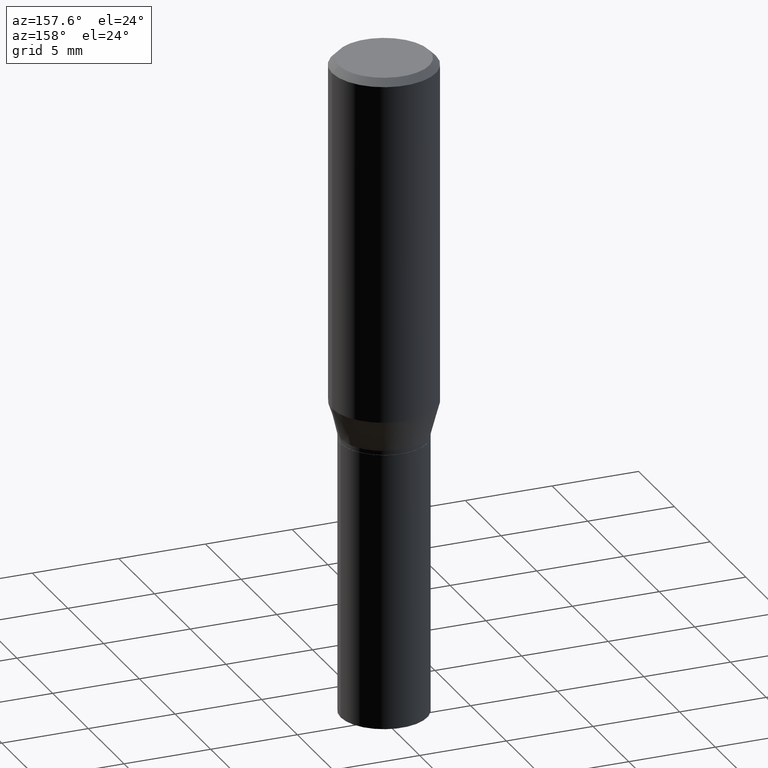
[diagram: clean part render]
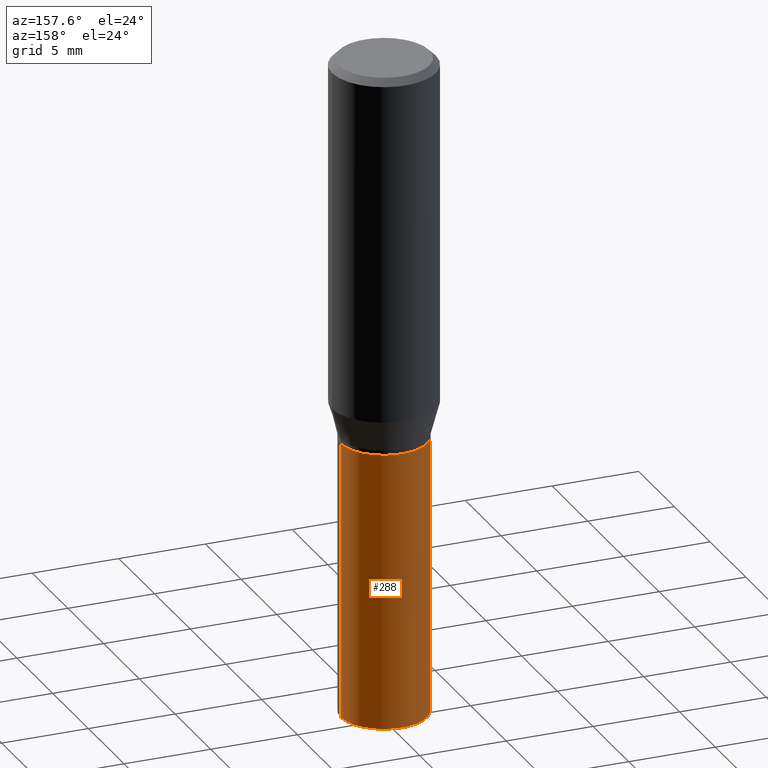
[diagram: same view with one face highlighted and labeled with its STEP entity id]
A machine part, auxiliary view. The second image highlights one B-rep face of the part: STEP entity #288.
In plain terms, the highlighted cylindrical surface (partial cylindrical patch) has radius 2.5006 mm, axis along (-0, 0, 1).
Its self-contained STEP definition (entity closure, byte-faithful):
#12 = ORIENTED_EDGE ( 'NONE', *, *, #279, .T. ) ;
#25 = ORIENTED_EDGE ( 'NONE', *, *, #83, .F. ) ;
#48 = DIRECTION ( 'NONE',  ( -2.445468806185136597E-29, 3.491481338843145583E-15, 1.000000000000000000 ) ) ;
#57 = EDGE_CURVE ( 'NONE', #105, #151, #230, .T. ) ;
#62 = CARTESIAN_POINT ( 'NONE',  ( -0.09844999999999999585, -3.438050637240251581E-15, -0.8701000000000000956 ) ) ;
#64 = FACE_OUTER_BOUND ( 'NONE', #177, .T. ) ;
#74 = AXIS2_PLACEMENT_3D ( 'NONE', #447, #48, #127 ) ;
#83 = EDGE_CURVE ( 'NONE', #140, #151, #186, .T. ) ;
#101 = CARTESIAN_POINT ( 'NONE',  ( 0.09844999999999999585, -5.924694683882931526E-15, -1.500000000000000222 ) ) ;
#103 = CIRCLE ( 'NONE', #135, 0.09844999999999999585 ) ;
#105 = VERTEX_POINT ( 'NONE', #410 ) ;
#121 = VECTOR ( 'NONE', #150, 39.37007874015748143 ) ;
#127 = DIRECTION ( 'NONE',  ( 1.000000000000000000, -6.982962677686265922E-15, 0.000000000000000000 ) ) ;
#128 = DIRECTION ( 'NONE',  ( -2.445468806185136877E-29, 3.491481338843145188E-15, 1.000000000000000000 ) ) ;
#130 = CYLINDRICAL_SURFACE ( 'NONE', #268, 0.09844999999999999585 ) ;
#135 = AXIS2_PLACEMENT_3D ( 'NONE', #276, #315, #311 ) ;
#140 = VERTEX_POINT ( 'NONE', #345 ) ;
#150 = DIRECTION ( 'NONE',  ( -2.445468806185136877E-29, 3.491481338843145188E-15, 1.000000000000000000 ) ) ;
#151 = VERTEX_POINT ( 'NONE', #62 ) ;
#173 = DIRECTION ( 'NONE',  ( -2.445468806185136597E-29, 3.491481338843145583E-15, 1.000000000000000000 ) ) ;
#177 = EDGE_LOOP ( 'NONE', ( #12, #254, #25, #405 ) ) ;
#186 = CIRCLE ( 'NONE', #74, 0.09844999999999999585 ) ;
#230 = LINE ( 'NONE', #402, #353 ) ;
#246 = VERTEX_POINT ( 'NONE', #101 ) ;
#254 = ORIENTED_EDGE ( 'NONE', *, *, #57, .T. ) ;
#268 = AXIS2_PLACEMENT_3D ( 'NONE', #386, #173, #277 ) ;
#276 = CARTESIAN_POINT ( 'NONE',  ( 3.668203209277704895E-29, -5.237222008264718177E-15, -1.500000000000000222 ) ) ;
#277 = DIRECTION ( 'NONE',  ( 1.000000000000000000, -6.982962677686266711E-15, 4.876176775795936353E-29 ) ) ;
#279 = EDGE_CURVE ( 'NONE', #246, #105, #103, .T. ) ;
#288 = ADVANCED_FACE ( 'NONE', ( #64 ), #130, .T. ) ;
#311 = DIRECTION ( 'NONE',  ( 1.000000000000000000, -6.982962677686265922E-15, 0.000000000000000000 ) ) ;
#315 = DIRECTION ( 'NONE',  ( -2.445468806185136597E-29, 3.491481338843145583E-15, 1.000000000000000000 ) ) ;
#345 = CARTESIAN_POINT ( 'NONE',  ( 0.09844999999999999585, -3.725410588545634555E-15, -0.8701000000000000956 ) ) ;
#353 = VECTOR ( 'NONE', #128, 39.37007874015748143 ) ;
#356 = CARTESIAN_POINT ( 'NONE',  ( 0.09844999999999999585, -6.874726756182129545E-16, 4.800596035771099214E-30 ) ) ;
#386 = CARTESIAN_POINT ( 'NONE',  ( 0.000000000000000000, 0.000000000000000000, 0.000000000000000000 ) ) ;
#390 = LINE ( 'NONE', #356, #121 ) ;
#402 = CARTESIAN_POINT ( 'NONE',  ( -0.09844999999999999585, 6.995293233558186035E-16, -4.842691596355954042E-30 ) ) ;
#405 = ORIENTED_EDGE ( 'NONE', *, *, #461, .F. ) ;
#410 = CARTESIAN_POINT ( 'NONE',  ( -0.09844999999999999585, -3.438050637240251581E-15, -1.500000000000000222 ) ) ;
#447 = CARTESIAN_POINT ( 'NONE',  ( 2.127802408261687534E-29, -3.037937912927421601E-15, -0.8701000000000000956 ) ) ;
#461 = EDGE_CURVE ( 'NONE', #246, #140, #390, .T. ) ;